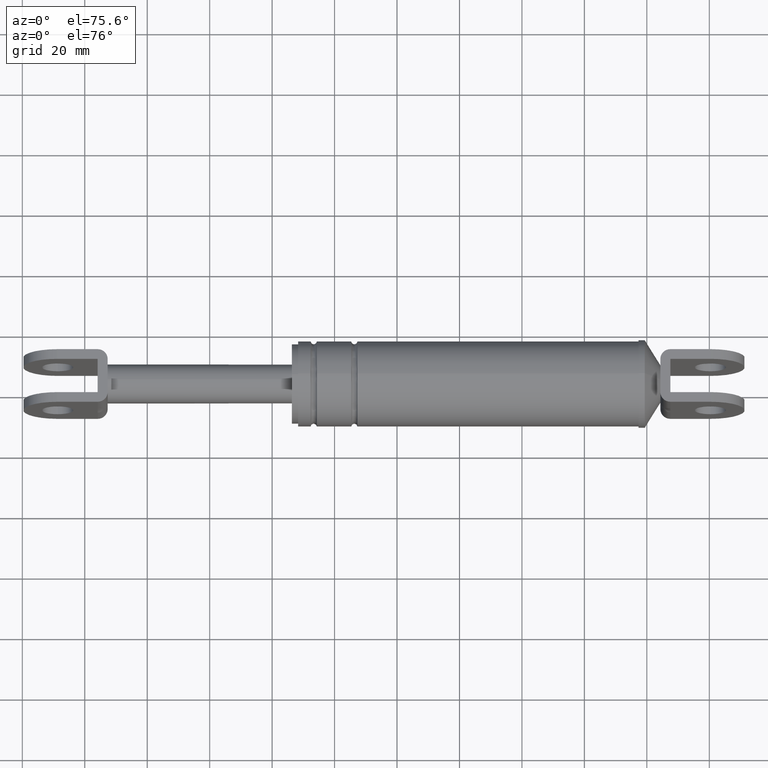
[diagram: clean part render]
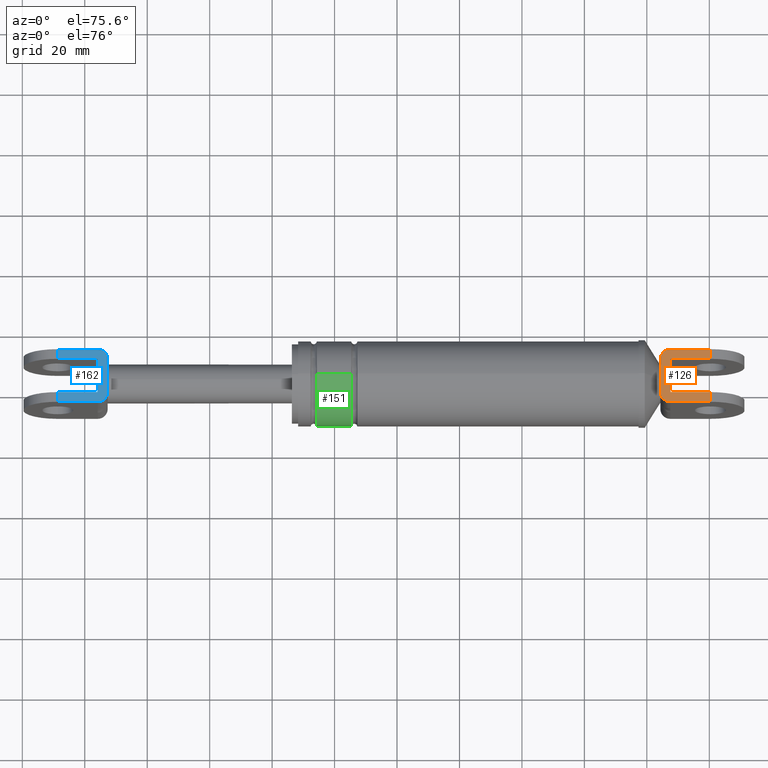
[diagram: same view with three faces highlighted in distinct colors, each labeled with its STEP entity id]
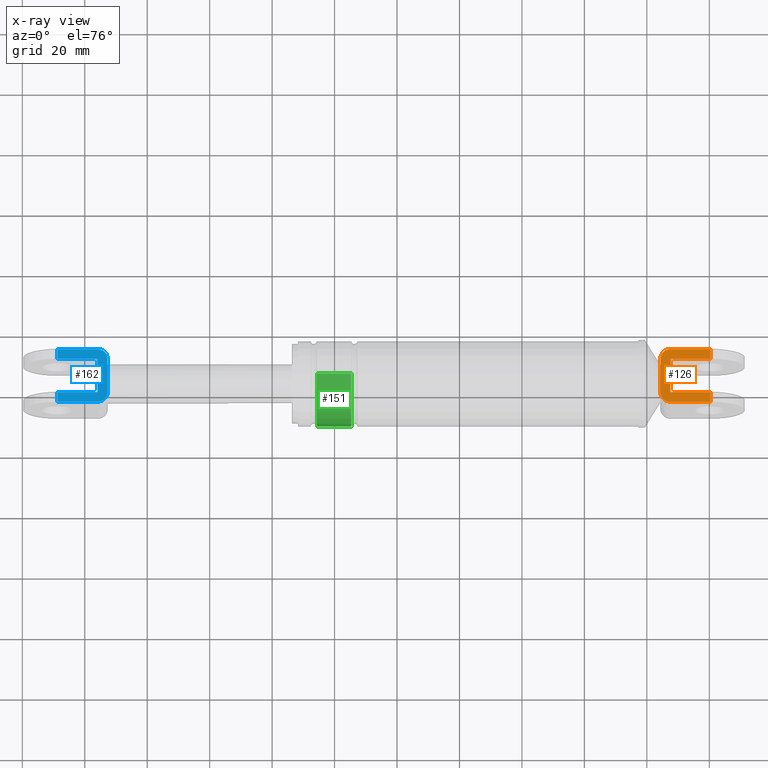
[diagram: x-ray of the same camera — body ghosted, the three highlighted faces saturated]
A machine part, auxiliary view with three faces highlighted in distinct colors.
The next image is the same camera in x-ray (body ghosted, the three faces saturated) — at least one of them is partly hidden behind the body in this view.
Their STEP definitions:

[orange] entity #126 — the highlighted planar face has unit normal (0, 0, -1).
#126=ADVANCED_FACE('',(#320),#319,.F.);
#319=PLANE('',#954);
#320=FACE_OUTER_BOUND('',#955,.T.);
#951=CARTESIAN_POINT('',(3.21928359882E+002,-1.04399964000E+001,1.97691405396E+002));
#952=DIRECTION('',(0.00000000000E+000,0.00000000000E+000,-1.00000000000E+000));
#953=DIRECTION('',(-1.00000000000E+000,0.00000000000E+000,0.00000000000E+000));
#954=AXIS2_PLACEMENT_3D('',#951,#952,#953);
#955=EDGE_LOOP('',(#1468,#1469,#1470,#1471,#1472,#1473,#1474,#1475,#1476,#1477));
#1468=ORIENTED_EDGE('',*,*,#1758,.T.);
#1469=ORIENTED_EDGE('',*,*,#1741,.T.);
#1470=ORIENTED_EDGE('',*,*,#1728,.T.);
#1471=ORIENTED_EDGE('',*,*,#1739,.T.);
#1472=ORIENTED_EDGE('',*,*,#1716,.T.);
#1473=ORIENTED_EDGE('',*,*,#1745,.T.);
#1474=ORIENTED_EDGE('',*,*,#1736,.T.);
#1475=ORIENTED_EDGE('',*,*,#1759,.T.);
#1476=ORIENTED_EDGE('',*,*,#1752,.T.);
#1477=ORIENTED_EDGE('',*,*,#1750,.F.);
#1716=EDGE_CURVE('',#1920,#1921,#1922,.T.);
#1728=EDGE_CURVE('',#2001,#2002,#2003,.T.);
#1736=EDGE_CURVE('',#2035,#2049,#2056,.T.);
#1739=EDGE_CURVE('',#2002,#1920,#2076,.T.);
#1741=EDGE_CURVE('',#2088,#2001,#2089,.T.);
#1745=EDGE_CURVE('',#1921,#2035,#2114,.T.);
#1750=EDGE_CURVE('',#2141,#2126,#2148,.T.);
#1752=EDGE_CURVE('',#2161,#2126,#2162,.T.);
#1758=EDGE_CURVE('',#2141,#2088,#2200,.T.);
#1759=EDGE_CURVE('',#2049,#2161,#2206,.T.);
#1920=VERTEX_POINT('',#2950);
#1921=VERTEX_POINT('',#2951);
#1922=LINE('',#2952,#2953);
#2001=VERTEX_POINT('',#3000);
#2002=VERTEX_POINT('',#3001);
#2003=LINE('',#3002,#3003);
#2035=VERTEX_POINT('',#3021);
#2049=VERTEX_POINT('',#3030);
#2056=LINE('',#3034,#3035);
#2076=CIRCLE('',#3050,3.20000000000E+000);
#2088=VERTEX_POINT('',#3055);
#2089=CIRCLE('',#3059,3.20000000000E+000);
#2114=LINE('',#3071,#3072);
#2126=VERTEX_POINT('',#3077);
#2141=VERTEX_POINT('',#3087);
#2148=LINE('',#3092,#3093);
#2161=VERTEX_POINT('',#3099);
#2162=LINE('',#3100,#3101);
#2200=LINE('',#3122,#3123);
#2206=LINE('',#3125,#3126);
#2950=CARTESIAN_POINT('',(3.07528359882E+002,-8.69999700000E+000,1.97691405396E+002));
#2951=CARTESIAN_POINT('',(3.20328358922E+002,-8.69999700000E+000,1.97691405396E+002));
#2952=CARTESIAN_POINT('',(3.07528359882E+002,-8.69999700000E+000,1.97691405396E+002));
#2953=VECTOR('',#2954,1.27999990401E+001);
#2954=DIRECTION('',(1.00000000000E+000,0.00000000000E+000,0.00000000000E+000));
#3000=CARTESIAN_POINT('',(3.04328359882E+002,5.49999700000E+000,1.97691405396E+002));
#3001=CARTESIAN_POINT('',(3.04328359882E+002,-5.49999700000E+000,1.97691405396E+002));
#3002=CARTESIAN_POINT('',(3.04328359882E+002,5.49999700000E+000,1.97691405396E+002));
#3003=VECTOR('',#3004,1.09999940000E+001);
#3004=DIRECTION('',(0.00000000000E+000,-1.00000000000E+000,0.00000000000E+000));
#3021=CARTESIAN_POINT('',(3.20328359882E+002,-5.50000000000E+000,1.97691405396E+002));
#3030=CARTESIAN_POINT('',(3.07528371882E+002,-5.50000000000E+000,1.97691405396E+002));
#3034=CARTESIAN_POINT('',(3.20328359882E+002,-5.50000000000E+000,1.97691405396E+002));
#3035=VECTOR('',#3036,1.27999880000E+001);
#3036=DIRECTION('',(-1.00000000000E+000,0.00000000000E+000,0.00000000000E+000));
#3047=CARTESIAN_POINT('',(3.07528359882E+002,-5.49999700000E+000,1.97691405396E+002));
#3048=DIRECTION('',(0.00000000000E+000,-0.00000000000E+000,1.00000000000E+000));
#3049=DIRECTION('',(1.00000000000E+000,-0.00000000000E+000,-0.00000000000E+000));
#3050=AXIS2_PLACEMENT_3D('',#3047,#3048,#3049);
#3055=CARTESIAN_POINT('',(3.07528359882E+002,8.69999700000E+000,1.97691405396E+002));
#3056=CARTESIAN_POINT('',(3.07528359882E+002,5.49999700000E+000,1.97691405396E+002));
#3057=DIRECTION('',(0.00000000000E+000,-0.00000000000E+000,1.00000000000E+000));
#3058=DIRECTION('',(1.00000000000E+000,-0.00000000000E+000,-0.00000000000E+000));
#3059=AXIS2_PLACEMENT_3D('',#3056,#3057,#3058);
#3071=CARTESIAN_POINT('',(3.20328359882E+002,-8.69999700000E+000,1.97691405396E+002));
#3072=VECTOR('',#3073,3.19999700000E+000);
#3073=DIRECTION('',(0.00000000000E+000,1.00000000000E+000,0.00000000000E+000));
#3077=CARTESIAN_POINT('',(3.20328358922E+002,5.50000000000E+000,1.97691405396E+002));
#3087=CARTESIAN_POINT('',(3.20328358922E+002,8.69999700000E+000,1.97691405396E+002));
#3092=CARTESIAN_POINT('',(3.20328358922E+002,8.69999700000E+000,1.97691405396E+002));
#3093=VECTOR('',#3094,3.19999700000E+000);
#3094=DIRECTION('',(0.00000000000E+000,-1.00000000000E+000,0.00000000000E+000));
#3099=CARTESIAN_POINT('',(3.07528371882E+002,5.50000000000E+000,1.97691405396E+002));
#3100=CARTESIAN_POINT('',(3.07528371882E+002,5.50000000000E+000,1.97691405396E+002));
#3101=VECTOR('',#3102,1.27999870401E+001);
#3102=DIRECTION('',(1.00000000000E+000,0.00000000000E+000,0.00000000000E+000));
#3122=CARTESIAN_POINT('',(3.20328358922E+002,8.69999700000E+000,1.97691405396E+002));
#3123=VECTOR('',#3124,1.27999990401E+001);
#3124=DIRECTION('',(-1.00000000000E+000,0.00000000000E+000,0.00000000000E+000));
#3125=CARTESIAN_POINT('',(3.07528371882E+002,-5.50000000000E+000,1.97691405396E+002));
#3126=VECTOR('',#3127,1.10000000000E+001);
#3127=DIRECTION('',(0.00000000000E+000,1.00000000000E+000,0.00000000000E+000));

[blue] entity #162 — the highlighted planar face has unit normal (0, 0, -1).
#162=ADVANCED_FACE('',(#686),#685,.F.);
#685=PLANE('',#1328);
#686=FACE_OUTER_BOUND('',#1329,.T.);
#1325=CARTESIAN_POINT('',(1.28928359978E+002,-1.04399964000E+001,1.97691405396E+002));
#1326=DIRECTION('',(0.00000000000E+000,0.00000000000E+000,-1.00000000000E+000));
#1327=DIRECTION('',(-1.00000000000E+000,0.00000000000E+000,0.00000000000E+000));
#1328=AXIS2_PLACEMENT_3D('',#1325,#1326,#1327);
#1329=EDGE_LOOP('',(#1636,#1637,#1638,#1639,#1640,#1641,#1642,#1643,#1644,#1645));
#1636=ORIENTED_EDGE('',*,*,#1806,.F.);
#1637=ORIENTED_EDGE('',*,*,#1829,.T.);
#1638=ORIENTED_EDGE('',*,*,#1831,.F.);
#1639=ORIENTED_EDGE('',*,*,#1845,.T.);
#1640=ORIENTED_EDGE('',*,*,#1813,.F.);
#1641=ORIENTED_EDGE('',*,*,#1826,.T.);
#1642=ORIENTED_EDGE('',*,*,#1846,.F.);
#1643=ORIENTED_EDGE('',*,*,#1847,.F.);
#1644=ORIENTED_EDGE('',*,*,#1837,.F.);
#1645=ORIENTED_EDGE('',*,*,#1848,.T.);
#1806=EDGE_CURVE('',#2508,#2515,#2516,.T.);
#1813=EDGE_CURVE('',#2562,#2563,#2564,.T.);
#1826=EDGE_CURVE('',#2562,#2651,#2652,.T.);
#1829=EDGE_CURVE('',#2508,#2671,#2672,.T.);
#1831=EDGE_CURVE('',#2684,#2671,#2685,.T.);
#1837=EDGE_CURVE('',#2718,#2725,#2726,.T.);
#1845=EDGE_CURVE('',#2684,#2563,#2778,.T.);
#1846=EDGE_CURVE('',#2784,#2651,#2785,.T.);
#1847=EDGE_CURVE('',#2725,#2784,#2791,.T.);
#1848=EDGE_CURVE('',#2718,#2515,#2797,.T.);
#2508=VERTEX_POINT('',#3314);
#2515=VERTEX_POINT('',#3318);
#2516=LINE('',#3319,#3320);
#2562=VERTEX_POINT('',#3350);
#2563=VERTEX_POINT('',#3351);
#2564=LINE('',#3352,#3353);
#2651=VERTEX_POINT('',#3414);
#2652=LINE('',#3415,#3416);
#2671=VERTEX_POINT('',#3426);
#2672=CIRCLE('',#3430,3.20000000000E+000);
#2684=VERTEX_POINT('',#3434);
#2685=LINE('',#3435,#3436);
#2718=VERTEX_POINT('',#3455);
#2725=VERTEX_POINT('',#3460);
#2726=LINE('',#3461,#3462);
#2778=CIRCLE('',#3496,3.20000000000E+000);
#2784=VERTEX_POINT('',#3497);
#2785=LINE('',#3498,#3499);
#2791=LINE('',#3501,#3502);
#2797=LINE('',#3504,#3505);
#3314=CARTESIAN_POINT('',(1.24128359882E+002,-8.69999700000E+000,1.97691405396E+002));
#3318=CARTESIAN_POINT('',(1.11328358922E+002,-8.69999700000E+000,1.97691405396E+002));
#3319=CARTESIAN_POINT('',(1.24128359882E+002,-8.69999700000E+000,1.97691405396E+002));
#3320=VECTOR('',#3321,1.28000009599E+001);
#3321=DIRECTION('',(-1.00000000000E+000,0.00000000000E+000,0.00000000000E+000));
#3350=CARTESIAN_POINT('',(1.11328358922E+002,8.69999700000E+000,1.97691405396E+002));
#3351=CARTESIAN_POINT('',(1.24128359882E+002,8.69999700000E+000,1.97691405396E+002));
#3352=CARTESIAN_POINT('',(1.11328358922E+002,8.69999700000E+000,1.97691405396E+002));
#3353=VECTOR('',#3354,1.28000009599E+001);
#3354=DIRECTION('',(1.00000000000E+000,0.00000000000E+000,0.00000000000E+000));
#3414=CARTESIAN_POINT('',(1.11328359882E+002,5.50000000000E+000,1.97691405396E+002));
#3415=CARTESIAN_POINT('',(1.11328358922E+002,8.69999700000E+000,1.97691405396E+002));
#3416=VECTOR('',#3417,3.19999700000E+000);
#3417=DIRECTION('',(0.00000000000E+000,-1.00000000000E+000,0.00000000000E+000));
#3426=CARTESIAN_POINT('',(1.27328359882E+002,-5.49999700000E+000,1.97691405396E+002));
#3427=CARTESIAN_POINT('',(1.24128359882E+002,-5.49999700000E+000,1.97691405396E+002));
#3428=DIRECTION('',(0.00000000000E+000,-0.00000000000E+000,1.00000000000E+000));
#3429=DIRECTION('',(1.00000000000E+000,-0.00000000000E+000,-0.00000000000E+000));
#3430=AXIS2_PLACEMENT_3D('',#3427,#3428,#3429);
#3434=CARTESIAN_POINT('',(1.27328359882E+002,5.49999700000E+000,1.97691405396E+002));
#3435=CARTESIAN_POINT('',(1.27328359882E+002,5.49999700000E+000,1.97691405396E+002));
#3436=VECTOR('',#3437,1.09999940000E+001);
#3437=DIRECTION('',(0.00000000000E+000,-1.00000000000E+000,0.00000000000E+000));
#3455=CARTESIAN_POINT('',(1.11328358922E+002,-5.50000000000E+000,1.97691405396E+002));
#3460=CARTESIAN_POINT('',(1.24128362882E+002,-5.50000000000E+000,1.97691405396E+002));
#3461=CARTESIAN_POINT('',(1.11328358922E+002,-5.50000000000E+000,1.97691405396E+002));
#3462=VECTOR('',#3463,1.28000039599E+001);
#3463=DIRECTION('',(1.00000000000E+000,0.00000000000E+000,0.00000000000E+000));
#3493=CARTESIAN_POINT('',(1.24128359882E+002,5.49999700000E+000,1.97691405396E+002));
#3494=DIRECTION('',(0.00000000000E+000,-0.00000000000E+000,1.00000000000E+000));
#3495=DIRECTION('',(1.00000000000E+000,-0.00000000000E+000,-0.00000000000E+000));
#3496=AXIS2_PLACEMENT_3D('',#3493,#3494,#3495);
#3497=CARTESIAN_POINT('',(1.24128362882E+002,5.50000000000E+000,1.97691405396E+002));
#3498=CARTESIAN_POINT('',(1.24128362882E+002,5.50000000000E+000,1.97691405396E+002));
#3499=VECTOR('',#3500,1.28000030000E+001);
#3500=DIRECTION('',(-1.00000000000E+000,0.00000000000E+000,0.00000000000E+000));
#3501=CARTESIAN_POINT('',(1.24128362882E+002,-5.50000000000E+000,1.97691405396E+002));
#3502=VECTOR('',#3503,1.10000000000E+001);
#3503=DIRECTION('',(0.00000000000E+000,1.00000000000E+000,0.00000000000E+000));
#3504=CARTESIAN_POINT('',(1.11328359882E+002,-5.50000000000E+000,1.97691405396E+002));
#3505=VECTOR('',#3506,3.19999700000E+000);
#3506=DIRECTION('',(0.00000000000E+000,-1.00000000000E+000,0.00000000000E+000));

[green] entity #151 — the highlighted cylindrical surface (partial cylindrical patch) has radius 13.7 mm, axis along (1, 0, 0).
#151=ADVANCED_FACE('',(#573),#572,.T.);
#572=CYLINDRICAL_SURFACE('',#1218,1.37000000000E+001);
#573=FACE_OUTER_BOUND('',#1219,.T.);
#1215=CARTESIAN_POINT('',(0.00000000000E+000,0.00000000000E+000,1.86691405396E+002));
#1216=DIRECTION('',(1.00000000000E+000,-0.00000000000E+000,-0.00000000000E+000));
#1217=DIRECTION('',(-0.00000000000E+000,-0.00000000000E+000,-1.00000000000E+000));
#1218=AXIS2_PLACEMENT_3D('',#1215,#1216,#1217);
#1219=EDGE_LOOP('',(#1580,#1581,#1582,#1583));
#1580=ORIENTED_EDGE('',*,*,#1785,.F.);
#1581=ORIENTED_EDGE('',*,*,#1800,.T.);
#1582=ORIENTED_EDGE('',*,*,#1790,.T.);
#1583=ORIENTED_EDGE('',*,*,#1801,.F.);
#1785=EDGE_CURVE('',#2359,#2358,#2378,.T.);
#1790=EDGE_CURVE('',#2392,#2399,#2412,.T.);
#1800=EDGE_CURVE('',#2359,#2392,#2474,.T.);
#1801=EDGE_CURVE('',#2358,#2399,#2480,.T.);
#2358=VERTEX_POINT('',#3214);
#2359=VERTEX_POINT('',#3215);
#2378=CIRCLE('',#3235,1.37000000000E+001);
#2392=VERTEX_POINT('',#3242);
#2399=VERTEX_POINT('',#3248);
#2412=CIRCLE('',#3263,1.37000000000E+001);
#2474=(BOUNDED_CURVE() B_SPLINE_CURVE(1,(#3290,#3291),.UNSPECIFIED.,.F.,.F.) B_SPLINE_CURVE_WITH_KNOTS((2,2),(8.33333343261E-002,9.16666667006E-001),.UNSPECIFIED.) CURVE() GEOMETRIC_REPRESENTATION_ITEM() RATIONAL_B_SPLINE_CURVE((1.00000000000E+000,1.00000000000E+000)) REPRESENTATION_ITEM('') );
#2480=(BOUNDED_CURVE() B_SPLINE_CURVE(1,(#3292,#3293),.UNSPECIFIED.,.F.,.F.) B_SPLINE_CURVE_WITH_KNOTS((2,2),(8.33333333333E-002,9.16666666667E-001),.UNSPECIFIED.) CURVE() GEOMETRIC_REPRESENTATION_ITEM() RATIONAL_B_SPLINE_CURVE((7.50000000000E-001,7.50000000000E-001)) REPRESENTATION_ITEM('') );
#3214=CARTESIAN_POINT('',(1.94328359882E+002,0.00000000000E+000,2.00391405396E+002));
#3215=CARTESIAN_POINT('',(1.94328359882E+002,0.00000000000E+000,1.72991405396E+002));
#3232=CARTESIAN_POINT('',(1.94328359882E+002,0.00000000000E+000,1.86691405396E+002));
#3233=DIRECTION('',(-1.00000000000E+000,0.00000000000E+000,0.00000000000E+000));
#3234=DIRECTION('',(0.00000000000E+000,-1.22460635382E-016,1.00000000000E+000));
#3235=AXIS2_PLACEMENT_3D('',#3232,#3233,#3234);
#3242=CARTESIAN_POINT('',(2.05328359882E+002,0.00000000000E+000,1.72991405396E+002));
#3248=CARTESIAN_POINT('',(2.05328359882E+002,0.00000000000E+000,2.00391405396E+002));
#3260=CARTESIAN_POINT('',(2.05328359882E+002,0.00000000000E+000,1.86691405396E+002));
#3261=DIRECTION('',(-1.00000000000E+000,0.00000000000E+000,0.00000000000E+000));
#3262=DIRECTION('',(0.00000000000E+000,-1.22460635382E-016,1.00000000000E+000));
#3263=AXIS2_PLACEMENT_3D('',#3260,#3261,#3262);
#3290=CARTESIAN_POINT('',(1.94328359895E+002,0.00000000000E+000,1.72991405396E+002));
#3291=CARTESIAN_POINT('',(2.05328359886E+002,0.00000000000E+000,1.72991405396E+002));
#3292=CARTESIAN_POINT('',(1.94328359882E+002,-5.92118946467E-016,2.00391405396E+002));
#3293=CARTESIAN_POINT('',(2.05328359882E+002,-5.92118946467E-016,2.00391405396E+002));